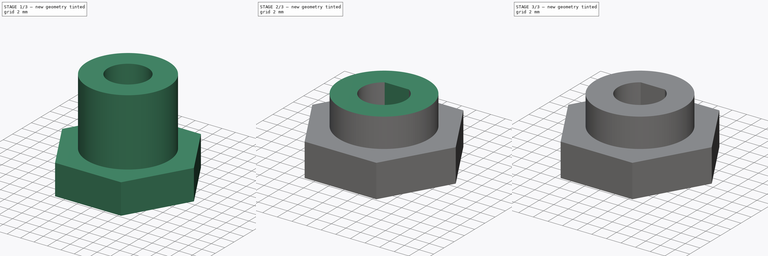
[diagram: build sequence overview — one tinted view per stage of 3, left to right]
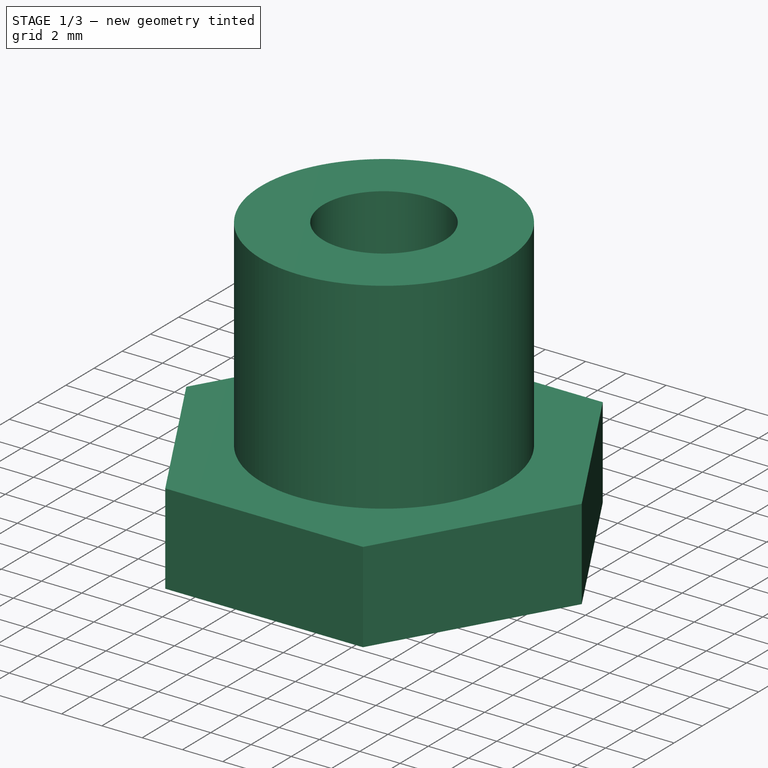
[diagram: stage 1 of 3 — iso view after this stage's code; geometry added in this stage tinted green]
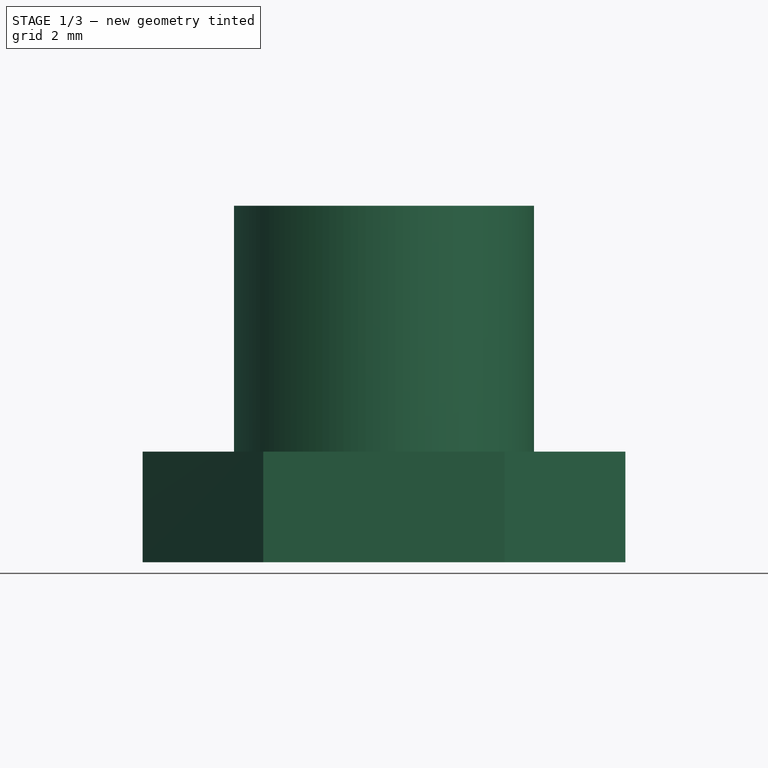
[diagram: stage 1 of 3 — front view after this stage's code; geometry added in this stage tinted green]
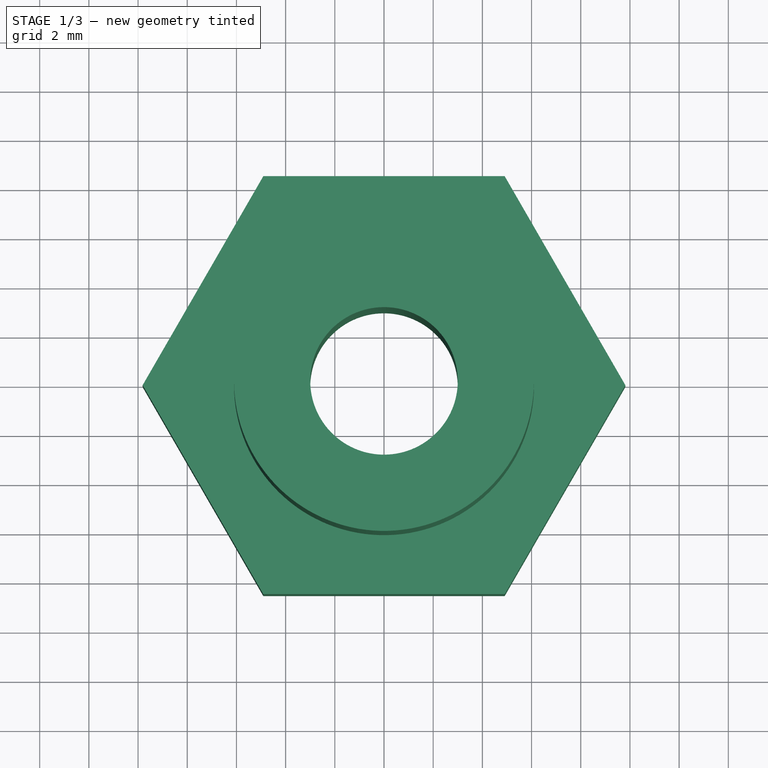
[diagram: stage 1 of 3 — top view after this stage's code; geometry added in this stage tinted green]
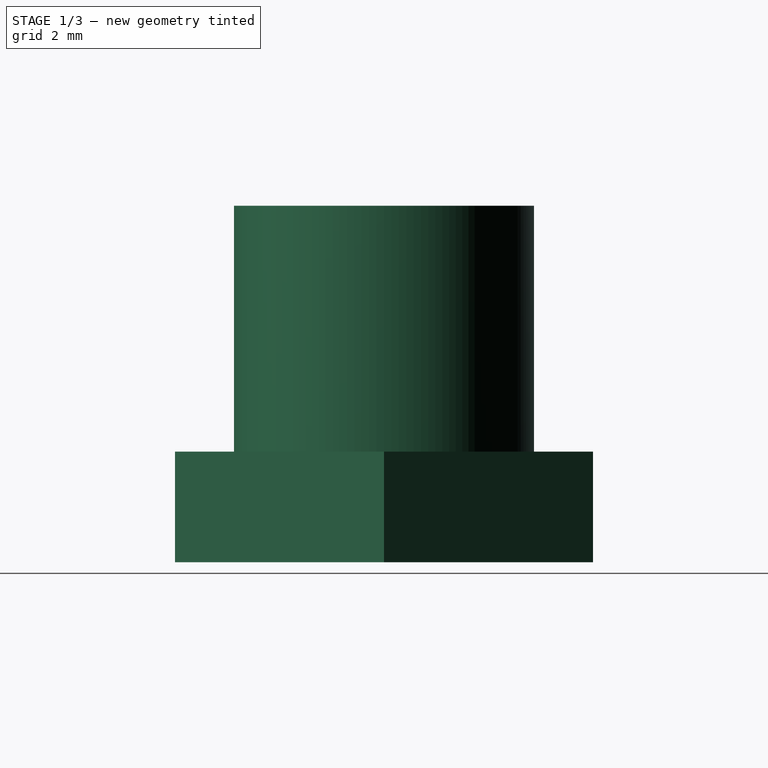
[diagram: stage 1 of 3 — right view after this stage's code; geometry added in this stage tinted green]
FCSTD DOCUMENT  (FreeCAD 0.20R29603 (Git))
Label: bocal-fixadora3
License: All rights reserved
LicenseURL: http://en.wikipedia.org/wiki/All_rights_reserved
objects: Sketcher::SketchObject×6, PartDesign::Pad×4, PartDesign::Pocket×3, PartDesign::Body×1
note: 21 computed .brp shape members not serialized (recipe doc carries the construction recipe); baked Part::Feature solids carry a one-line shape summary decoded from their .brp

FEATURE [Sketcher::SketchObject] Sketch
  FullyConstrained = true
  MapMode = 5
  Support = -> [XY_Plane]
  sketch-geometry (8):
    g0: LineSegment StartX=9.81495 StartY=0 StartZ=0 EndX=4.90748 EndY=8.5 EndZ=0
    g1: LineSegment StartX=4.90748 StartY=8.5 StartZ=0 EndX=-4.90748 EndY=8.5 EndZ=0
    g2: LineSegment StartX=-4.90748 StartY=8.5 StartZ=0 EndX=-9.81495 EndY=0 EndZ=0
    g3: LineSegment StartX=-9.81495 StartY=0 StartZ=0 EndX=-4.90748 EndY=-8.5 EndZ=0
    g4: LineSegment StartX=-4.90748 StartY=-8.5 StartZ=0 EndX=4.90748 EndY=-8.5 EndZ=0
    g5: LineSegment StartX=4.90748 StartY=-8.5 StartZ=0 EndX=9.81495 EndY=0 EndZ=0
    g6: Circle CenterX=0 CenterY=0 CenterZ=0 NormalX=0 NormalY=0 NormalZ=1 AngleXU=0 Radius=9.81495
    g7: Circle CenterX=0 CenterY=0 CenterZ=0 NormalX=0 NormalY=0 NormalZ=1 AngleXU=0 Radius=3
  constraints (18):
    c: Coincident(g0,g1)
    c: Coincident(g1,g2)
    c: Coincident(g2,g3)
    c: Coincident(g3,g4)
    c: Coincident(g4,g5)
    c: Coincident(g5,g0)
    c: Equal(g0, g1-g5) x5
    c: PointOnObject(g0,g6)
    c: PointOnObject(g1,g6)
    c: PointOnObject(g2,g6)
    c: PointOnObject(g3,g6)
    c: PointOnObject(g4,g6)
    c: PointOnObject(g5,g6)
    c: Coincident(g6,g-1)
    c: PointOnObject(g5,g-1)
    c: Coincident(g7,g6)
    c: Distance(g1,g3) = 17
    c: Diameter(g7) = 6
FEATURE [PartDesign::Pad] Pad
  Direction = (0,0,1)
  Length = 4.5
  Length2 = 10
  Profile = -> Sketch
  ReferenceAxis = -> Sketch [N_Axis]
  Type = 0
FEATURE [Sketcher::SketchObject] Sketch001
  ExternalGeometry = -> [Pad]
  FullyConstrained = true
  MapMode = 5
  Placement = pos=(0,0,4.5) rot=(0,0,1;0rad)
  Support = -> [Pad]
  sketch-geometry (2):
    g0: Circle CenterX=0 CenterY=0 CenterZ=0 NormalX=0 NormalY=0 NormalZ=1 AngleXU=0 Radius=6.1
    g1: Circle CenterX=0 CenterY=0 CenterZ=0 NormalX=0 NormalY=0 NormalZ=1 AngleXU=0 Radius=3
  constraints (4):
    c: Coincident(g0,g-1)
    c: Coincident(g1,g0)
    c: Equal(g1,g-3)
    c: Diameter(g0) = 12.2
FEATURE [PartDesign::Pad] Pad001
  BaseFeature = -> Pad
  Direction = (0,0,1)
  Length = 10
  Length2 = 10
  Profile = -> Sketch001
  ReferenceAxis = -> Sketch001 [N_Axis]
  Type = 0
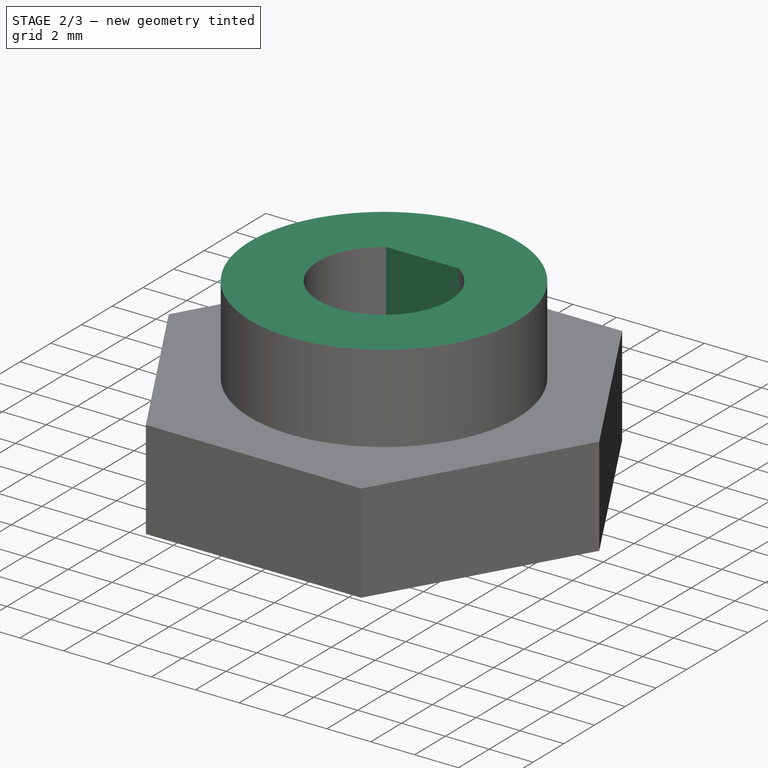
[diagram: stage 2 of 3 — iso view after this stage's code; geometry added in this stage tinted green]
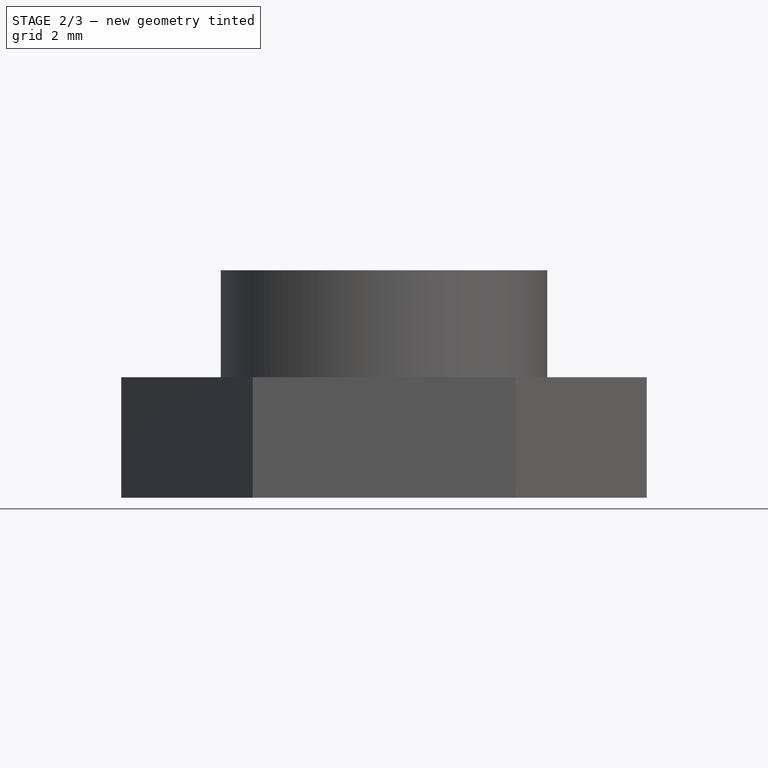
[diagram: stage 2 of 3 — front view after this stage's code; geometry added in this stage tinted green]
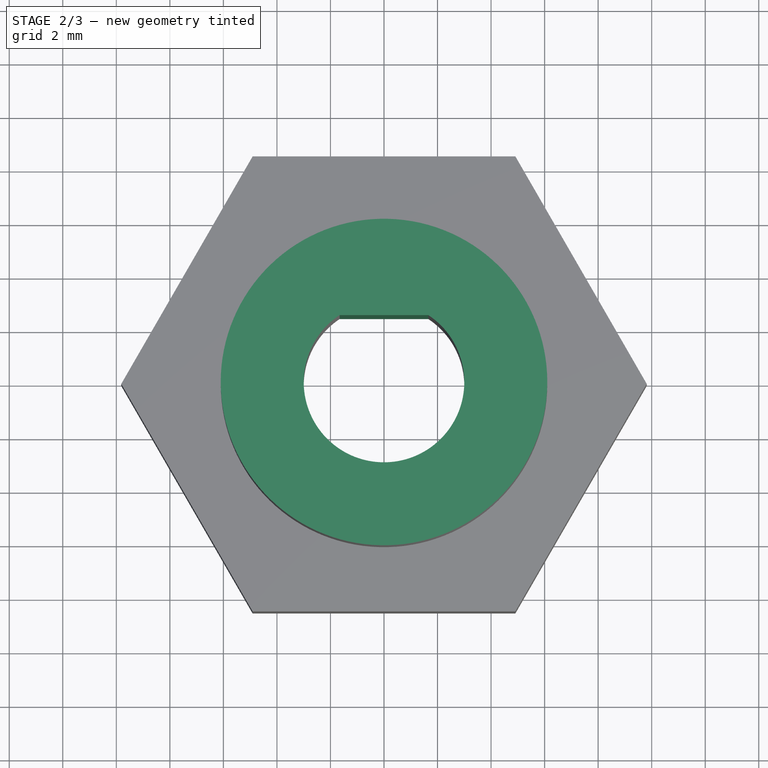
[diagram: stage 2 of 3 — top view after this stage's code; geometry added in this stage tinted green]
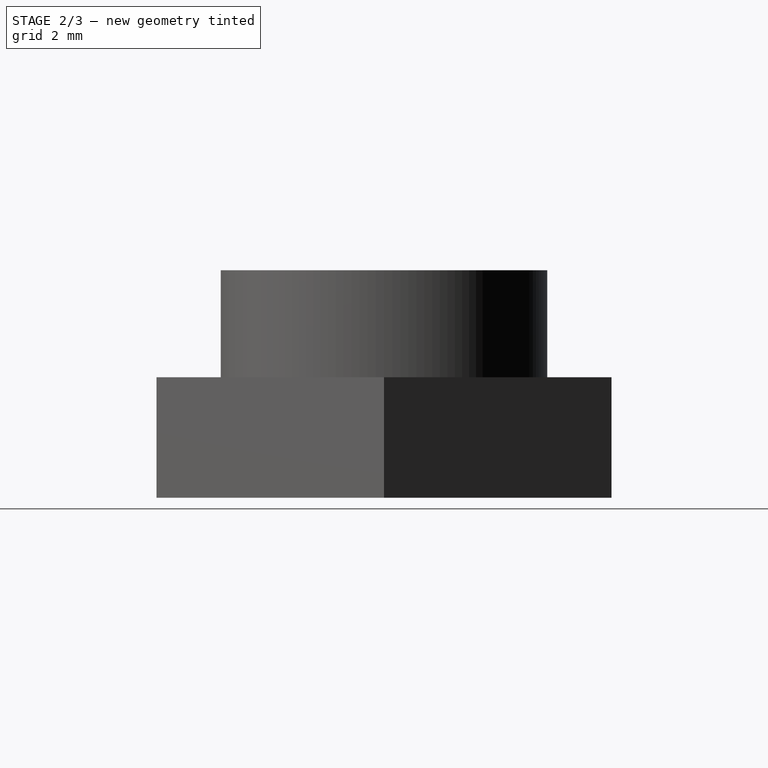
[diagram: stage 2 of 3 — right view after this stage's code; geometry added in this stage tinted green]
FEATURE [Sketcher::SketchObject] Sketch002
  ExternalGeometry = -> [Pad001]
  FullyConstrained = true
  MapMode = 5
  Placement = pos=(0,0,14.5) rot=(0,0,1;0rad)
  Support = -> [Pad001]
  sketch-geometry (3):
    g0: LineSegment StartX=-1.65831 StartY=2.5 StartZ=0 EndX=1.65831 EndY=2.5 EndZ=0
    g1: GeomPoint X=0 Y=-3 Z=0
    g2: ArcOfCircle CenterX=0 CenterY=0 CenterZ=0 NormalX=0 NormalY=0 NormalZ=1 AngleXU=0 Radius=3 StartAngle=0.985111 EndAngle=2.15648
  constraints (8):
    c: Horizontal(g0)
    c: PointOnObject(g1,g-2)
    c: DistanceY(g1,g0) = 5.5
    c: PointOnObject(g1,g-3)
    c: Equal(g2,g-3)
    c: Coincident(g2,g0)
    c: Coincident(g2,g0)
    c: Coincident(g2,g-3)
FEATURE [PartDesign::Pad] Pad002
  BaseFeature = -> Pad001
  Direction = (0,0,1)
  Length = 13
  Length2 = 10
  Profile = -> Sketch002
  ReferenceAxis = -> Sketch002 [N_Axis]
  Reversed = true
  Type = 0
FEATURE [Sketcher::SketchObject] Sketch003
  ExternalGeometry = -> [Pad002]
  FullyConstrained = true
  MapMode = 5
  Placement = pos=(0,0,14.5) rot=(0,0,1;0rad)
  Support = -> [Pad002]
  sketch-geometry (1):
    g0: Circle CenterX=0 CenterY=0 CenterZ=0 NormalX=0 NormalY=0 NormalZ=1 AngleXU=0 Radius=6.1
  constraints (2):
    c: Equal(g0,g-3)
    c: Coincident(g0,g-3)
FEATURE [PartDesign::Pocket] Pocket
  BaseFeature = -> Pad002
  Direction = (0,0,-1)
  Length = 6
  Length2 = 5
  Profile = -> Sketch003
  ReferenceAxis = -> Sketch003 [N_Axis]
  Type = 0
FEATURE [PartDesign::Pad] Pad003
  BaseFeature = -> Pocket
  Direction = (0,0,-1)
  Length = 10
  Length2 = 10
  Profile = -> Pocket [Face13]
  Type = 3
  UpToFace = -> Pocket [Face4]
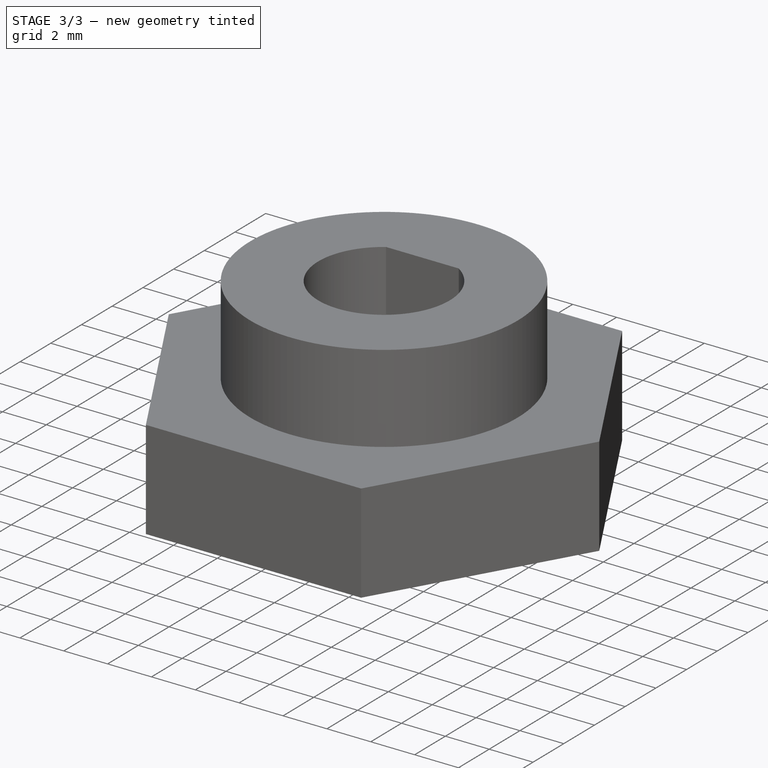
[diagram: stage 3 of 3 — iso view after this stage's code; geometry added in this stage tinted green]
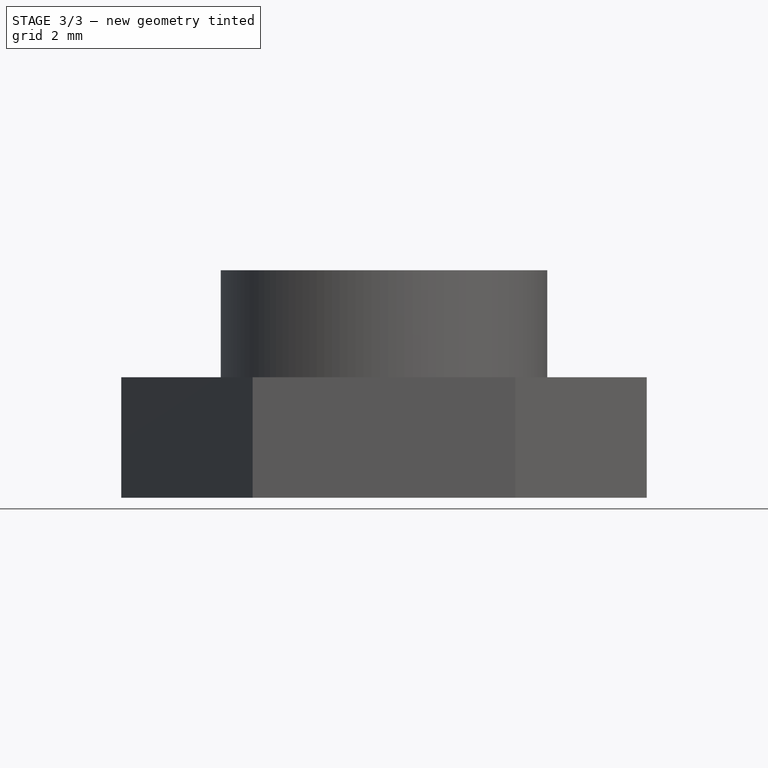
[diagram: stage 3 of 3 — front view after this stage's code; geometry added in this stage tinted green]
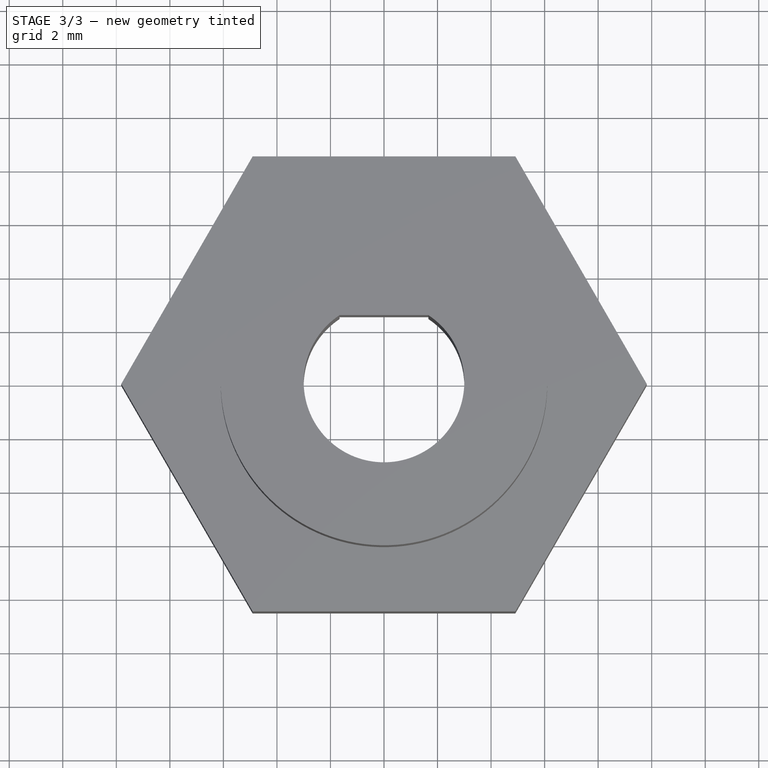
[diagram: stage 3 of 3 — top view after this stage's code; geometry added in this stage tinted green]
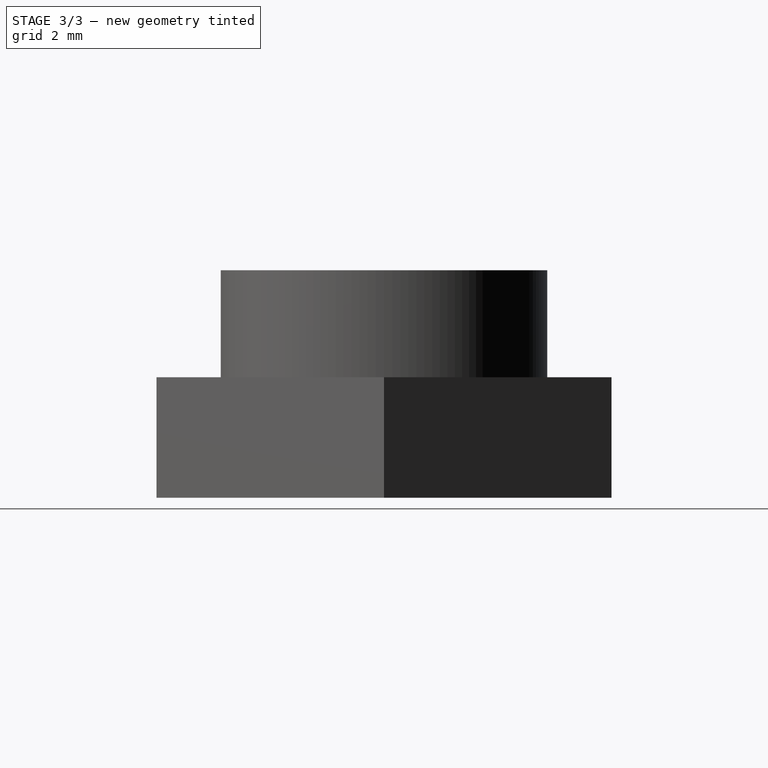
[diagram: stage 3 of 3 — right view after this stage's code; geometry added in this stage tinted green]
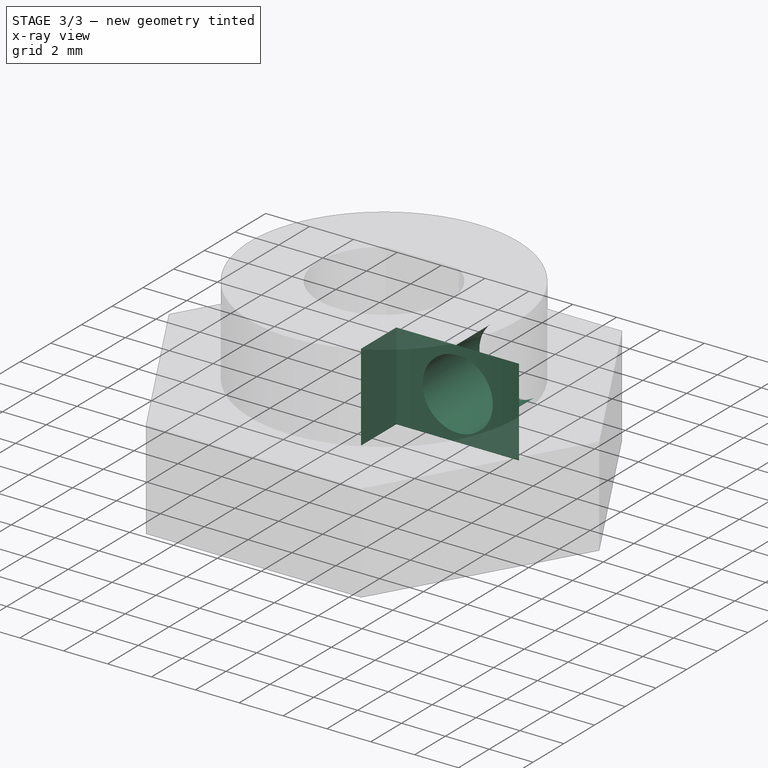
[diagram: stage 3 of 3 — x-ray composite at the iso view; earlier geometry ghosted, this stage's added geometry solid]
FEATURE [Sketcher::SketchObject] Sketch004
  ExternalGeometry = -> [Pad003]
  FullyConstrained = true
  MapMode = 5
  Placement = pos=(0,0,0) rot=(1,0,0;3.14159rad)
  Support = -> [Pad003]
  sketch-geometry (5):
    g0: LineSegment StartX=2.8 StartY=-2.5 StartZ=0 EndX=2.8 EndY=-4.8 EndZ=0
    g1: LineSegment StartX=2.8 StartY=-4.8 StartZ=0 EndX=-2.8 EndY=-4.8 EndZ=0
    g2: LineSegment StartX=-2.8 StartY=-4.8 StartZ=0 EndX=-2.8 EndY=-2.5 EndZ=0
    g3: LineSegment StartX=-2.8 StartY=-2.5 StartZ=0 EndX=0 EndY=-2.5 EndZ=0
    g4: LineSegment StartX=2.8 StartY=-2.5 StartZ=0 EndX=0 EndY=-2.5 EndZ=0
  constraints (15):
    c: Coincident(g0,g1)
    c: Coincident(g1,g2)
    c: Horizontal(g1)
    c: Vertical(g0)
    c: Vertical(g2)
    c: Coincident(g3,g2)
    c: PointOnObject(g3,g-2)
    c: Coincident(g4,g0)
    c: Coincident(g4,g3)
    c: Horizontal(g4)
    c: Horizontal(g3)
    c: Equal(g4,g3)
    c: DistanceX(g1,g1) = 5.6
    c: DistanceY(g2,g2) = 2.3
    c: PointOnObject(g-3,g4)
FEATURE [PartDesign::Pocket] Pocket001
  BaseFeature = -> Pad003
  Direction = (0,0,1)
  Length = 4
  Length2 = 5
  Profile = -> Sketch004
  ReferenceAxis = -> Sketch004 [N_Axis]
  Type = 0
FEATURE [Sketcher::SketchObject] Sketch005
  ExternalGeometry = -> [Pocket001]
  FullyConstrained = true
  MapMode = 5
  Placement = pos=(0,4.8,0) rot=(1,0,0;1.5708rad)
  Support = -> [Pocket001]
  sketch-geometry (4):
    g0: LineSegment StartX=-2.8 StartY=-5e-16 StartZ=0 EndX=2.8 EndY=4 EndZ=0
    g1: LineSegment StartX=-2.8 StartY=4 StartZ=0 EndX=2.8 EndY=-9e-16 EndZ=0
    g2: GeomPoint X=3.631e-13 Y=2 Z=0
    g3: Circle CenterX=3.631e-13 CenterY=2 CenterZ=0 NormalX=0 NormalY=0 NormalZ=1 AngleXU=0 Radius=1.6
  constraints (8):
    c: Coincident(g0,g-3)
    c: Coincident(g0,g-4)
    c: Coincident(g1,g-3)
    c: Coincident(g1,g-4)
    c: PointOnObject(g2,g1)
    c: PointOnObject(g2,g0)
    c: Coincident(g3,g2)
    c: Diameter(g3) = 3.2
FEATURE [PartDesign::Pocket] Pocket002
  BaseFeature = -> Pocket001
  Direction = (0,1,-2e-16)
  Length = 5
  Length2 = 5
  Profile = -> Sketch005
  ReferenceAxis = -> Sketch005 [N_Axis]
  Type = 1
FEATURE [PartDesign::Body] Body
  Group = -> [Sketch,Pad,Sketch001,Pad001,Sketch002,Pad002,Sketch003,Pocket,Pad003,Sketch004,Pocket001,Sketch005,Pocket002]
  Origin = -> Origin
  Tip = -> Pocket002
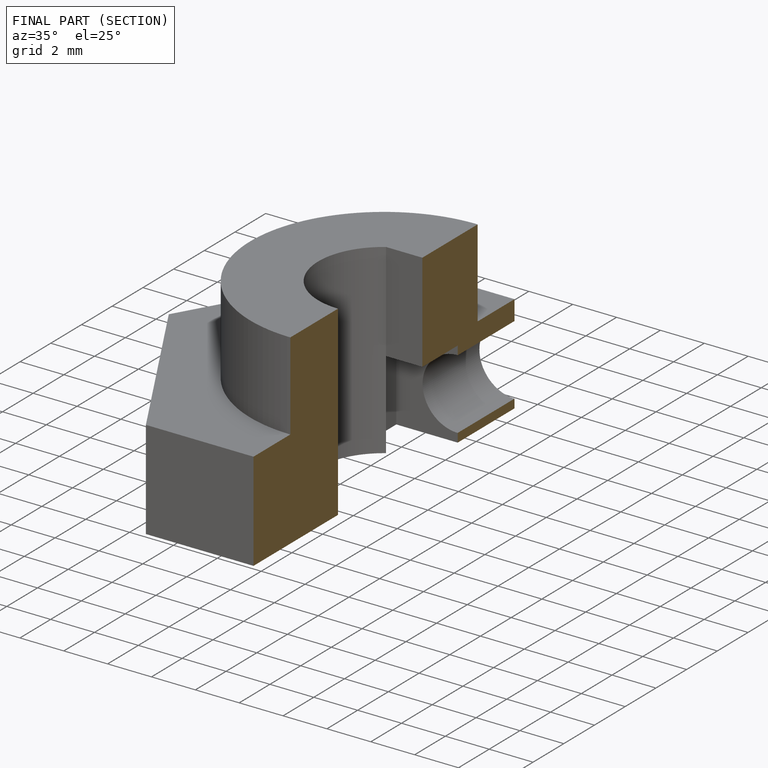
[diagram: finished part — half-section view (interior)]
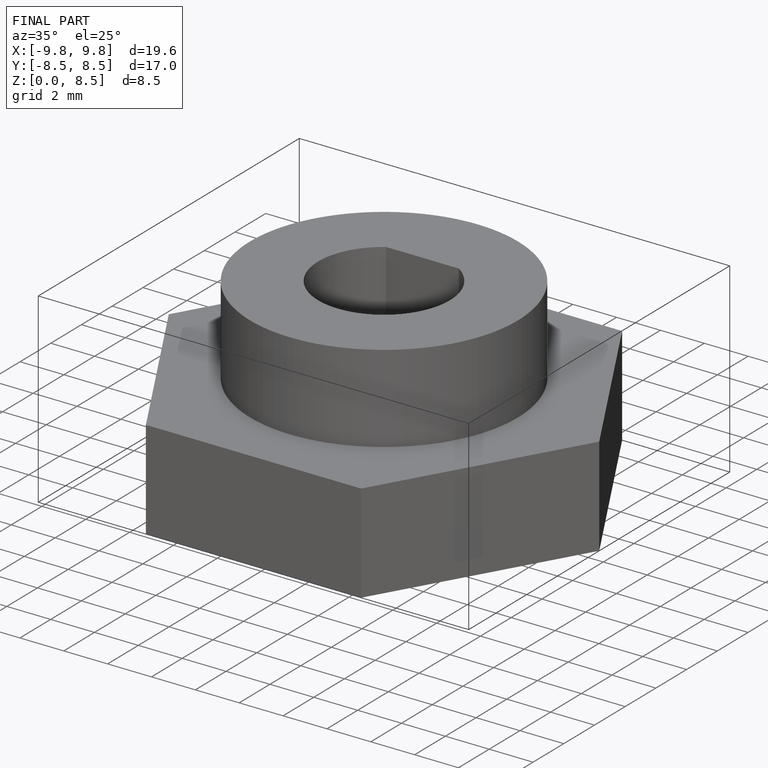
[diagram: finished part — iso view with bounding-box wireframe]
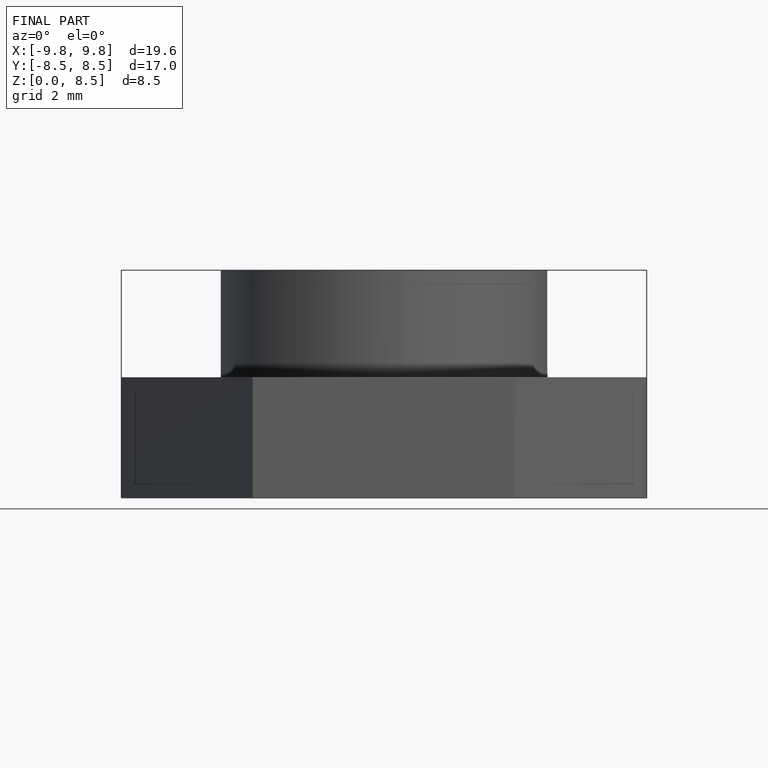
[diagram: finished part — front view with bounding-box wireframe]
